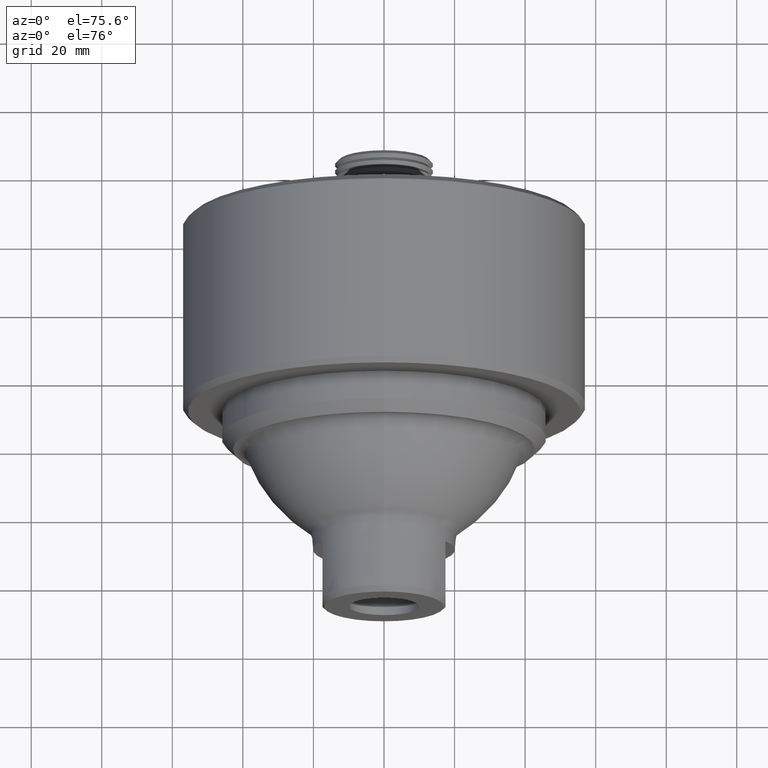
[diagram: clean part render]
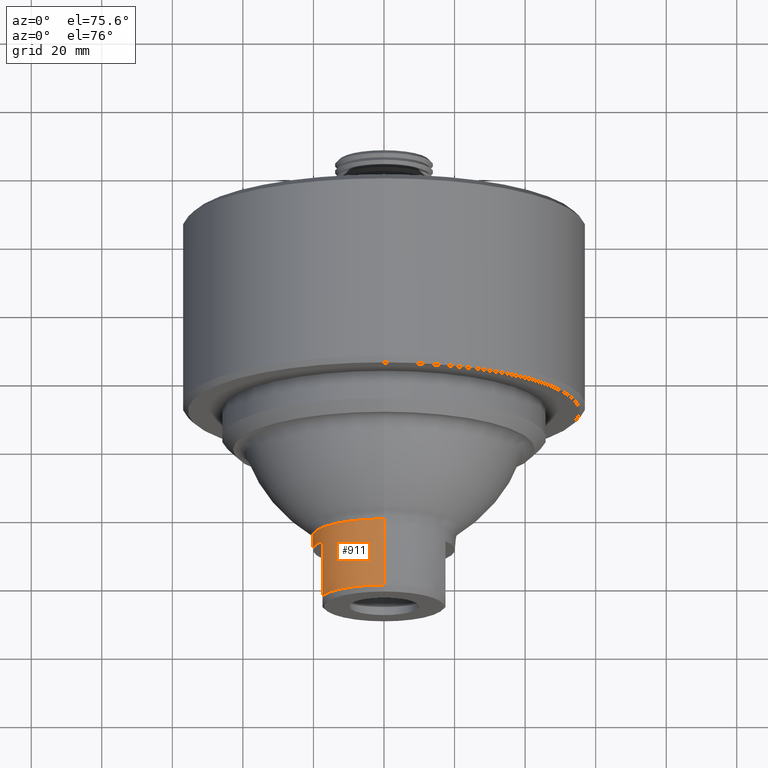
[diagram: same view with one face highlighted and labeled with its STEP entity id]
A machine part, auxiliary view. The second image highlights one B-rep face of the part: STEP entity #911.
In plain terms, the highlighted conical surface has half-angle 5.447 deg.
Its self-contained STEP definition (entity closure, byte-faithful):
#170 = CIRCLE ( 'NONE', #182, 0.7921674418604652800 ) ;
#173 = CIRCLE ( 'NONE', #178, 0.7356951005857581500 ) ;
#177 = CIRCLE ( 'NONE', #180, 0.7356951005857581500 ) ;
#178 = AXIS2_PLACEMENT_3D ( 'NONE', #1679, #1680, #1681 ) ;
#180 = AXIS2_PLACEMENT_3D ( 'NONE', #1692, #1693, #1694 ) ;
#182 = AXIS2_PLACEMENT_3D ( 'NONE', #1701, #1702, #1703 ) ;
#254 = AXIS2_PLACEMENT_3D ( 'NONE', #1848, #1849, #1850 ) ;
#255 = CONICAL_SURFACE ( 'NONE', #254, 0.7356951005857581500, 0.09506145173300949200 ) ;
#442 = EDGE_CURVE ( 'NONE', #2532, #2529, #2752, .T. ) ;
#513 = EDGE_CURVE ( 'NONE', #2531, #2528, #2792, .T. ) ;
#618 = EDGE_CURVE ( 'NONE', #2528, #2529, #2999, .T. ) ;
#686 = VECTOR ( 'NONE', #1000, 39.37007874015748100 ) ;
#787 = VECTOR ( 'NONE', #1183, 39.37007874015748100 ) ;
#866 = EDGE_CURVE ( 'NONE', #2576, #2532, #173, .T. ) ;
#868 = EDGE_CURVE ( 'NONE', #2531, #2577, #177, .T. ) ;
#869 = EDGE_CURVE ( 'NONE', #2577, #2578, #1378, .T. ) ;
#870 = EDGE_CURVE ( 'NONE', #2578, #2579, #170, .T. ) ;
#871 = EDGE_CURVE ( 'NONE', #2579, #2576, #1380, .T. ) ;
#911 = ADVANCED_FACE ( 'NONE', ( #2931 ), #255, .T. ) ;
#999 = CARTESIAN_POINT ( 'NONE',  ( 3.552713678800500900E-015, 0.05972910370429280300, 0.7356951005857581500 ) ) ;
#1000 = DIRECTION ( 'NONE',  ( 0.0000000000000000000, 0.9954850617382041700, 0.09491834309596847200 ) ) ;
#1182 = CARTESIAN_POINT ( 'NONE',  ( 3.642810343808574400E-015, 0.05972910370429280300, -0.7356951005857581500 ) ) ;
#1183 = DIRECTION ( 'NONE',  ( 1.162414450528480600E-017, 0.9954850617382041700, -0.09491834309596847200 ) ) ;
#1378 = B_SPLINE_CURVE_WITH_KNOTS ( 'NONE', 3,
 ( #1695, #1696, #1697, #1698, #1699, #1700 ),
 .UNSPECIFIED., .F., .F.,
 ( 4, 2, 4 ),
 ( 0.06147963865417929700, 0.06903875133002540500, 0.07659786400587149900 ),
 .UNSPECIFIED. ) ;
#1380 = B_SPLINE_CURVE_WITH_KNOTS ( 'NONE', 3,
 ( #1704, #1705, #1706, #1707, #1708, #1709 ),
 .UNSPECIFIED., .F., .F.,
 ( 4, 2, 4 ),
 ( 0.01596719644333322400, 0.02367008420088245100, 0.03137297195843167400 ),
 .UNSPECIFIED. ) ;
#1475 = CARTESIAN_POINT ( 'NONE',  ( 3.552713678800500900E-015, 0.8020314204042533500, 0.0000000000000000000 ) ) ;
#1476 = DIRECTION ( 'NONE',  ( 0.0000000000000000000, 1.000000000000000000, 0.0000000000000000000 ) ) ;
#1477 = DIRECTION ( 'NONE',  ( 0.0000000000000000000, 0.0000000000000000000, 1.000000000000000000 ) ) ;
#1679 = CARTESIAN_POINT ( 'NONE',  ( 3.552713678800500900E-015, 0.05972910370429280300, 0.0000000000000000000 ) ) ;
#1680 = DIRECTION ( 'NONE',  ( 0.0000000000000000000, 1.000000000000000000, 0.0000000000000000000 ) ) ;
#1681 = DIRECTION ( 'NONE',  ( 0.0000000000000000000, 0.0000000000000000000, 1.000000000000000000 ) ) ;
#1692 = CARTESIAN_POINT ( 'NONE',  ( 3.552713678800500900E-015, 0.05972910370429280300, 0.0000000000000000000 ) ) ;
#1693 = DIRECTION ( 'NONE',  ( 0.0000000000000000000, 1.000000000000000000, 0.0000000000000000000 ) ) ;
#1694 = DIRECTION ( 'NONE',  ( 0.0000000000000000000, 0.0000000000000000000, 1.000000000000000000 ) ) ;
#1695 = CARTESIAN_POINT ( 'NONE',  ( -0.6864499999999925700, 0.05972910370429286600, -0.2646387698843348800 ) ) ;
#1696 = CARTESIAN_POINT ( 'NONE',  ( -0.6864499999999927900, 0.1573351616461628200, -0.2905111610609641400 ) ) ;
#1697 = CARTESIAN_POINT ( 'NONE',  ( -0.6864499999999927900, 0.2558064863425552600, -0.3134726585834535200 ) ) ;
#1698 = CARTESIAN_POINT ( 'NONE',  ( -0.6864499999999924600, 0.4535270439805841900, -0.3564613806486505200 ) ) ;
#1699 = CARTESIAN_POINT ( 'NONE',  ( -0.6864499999999925700, 0.5526754392431600900, -0.3763924813928195600 ) ) ;
#1700 = CARTESIAN_POINT ( 'NONE',  ( -0.6864499999999925700, 0.6520000000000000200, -0.3953677445666994300 ) ) ;
#1701 = CARTESIAN_POINT ( 'NONE',  ( 3.552713678800500900E-015, 0.6520000000000000200, 0.0000000000000000000 ) ) ;
#1702 = DIRECTION ( 'NONE',  ( 0.0000000000000000000, 1.000000000000000000, 0.0000000000000000000 ) ) ;
#1703 = DIRECTION ( 'NONE',  ( 0.0000000000000000000, 0.0000000000000000000, 1.000000000000000000 ) ) ;
#1704 = CARTESIAN_POINT ( 'NONE',  ( -0.6864499999999929000, 0.6520000000000000200, 0.3953677445666988800 ) ) ;
#1705 = CARTESIAN_POINT ( 'NONE',  ( -0.6864499999999930100, 0.5526648028807846800, 0.3763904493901227300 ) ) ;
#1706 = CARTESIAN_POINT ( 'NONE',  ( -0.6864499999999930100, 0.4535402785546304200, 0.3564632163868123300 ) ) ;
#1707 = CARTESIAN_POINT ( 'NONE',  ( -0.6864499999999930100, 0.2559782258720476600, 0.3135110392378368500 ) ) ;
#1708 = CARTESIAN_POINT ( 'NONE',  ( -0.6864499999999930100, 0.1575240353912205100, 0.2905612257343884200 ) ) ;
#1709 = CARTESIAN_POINT ( 'NONE',  ( -0.6864499999999929000, 0.05972910370429005500, 0.2646387698843408200 ) ) ;
#1848 = CARTESIAN_POINT ( 'NONE',  ( 3.552713678800500900E-015, 0.05972910370429280300, 0.0000000000000000000 ) ) ;
#1849 = DIRECTION ( 'NONE',  ( 0.0000000000000000000, 1.000000000000000000, 0.0000000000000000000 ) ) ;
#1850 = DIRECTION ( 'NONE',  ( 0.0000000000000000000, 0.0000000000000000000, 1.000000000000000000 ) ) ;
#2124 = CARTESIAN_POINT ( 'NONE',  ( 3.651478107622992800E-015, 0.8020314204042533500, -0.8064727633408708100 ) ) ;
#2125 = CARTESIAN_POINT ( 'NONE',  ( 3.552713678800500900E-015, 0.8020314204042533500, 0.8064727633408708100 ) ) ;
#2127 = CARTESIAN_POINT ( 'NONE',  ( 3.642810343808575200E-015, 0.05972910370429280300, -0.7356951005857581500 ) ) ;
#2128 = CARTESIAN_POINT ( 'NONE',  ( 3.552713678800500900E-015, 0.05972910370429280300, 0.7356951005857581500 ) ) ;
#2172 = CARTESIAN_POINT ( 'NONE',  ( -0.6864499999999929000, 0.05972910370429005500, 0.2646387698843408200 ) ) ;
#2173 = CARTESIAN_POINT ( 'NONE',  ( -0.6864499999999925700, 0.05972910370429286600, -0.2646387698843348800 ) ) ;
#2174 = CARTESIAN_POINT ( 'NONE',  ( -0.6864499999999925700, 0.6520000000000000200, -0.3953677445666994300 ) ) ;
#2175 = CARTESIAN_POINT ( 'NONE',  ( -0.6864499999999929000, 0.6520000000000000200, 0.3953677445666988800 ) ) ;
#2281 = ORIENTED_EDGE ( 'NONE', *, *, #513, .F. ) ;
#2282 = ORIENTED_EDGE ( 'NONE', *, *, #868, .T. ) ;
#2283 = ORIENTED_EDGE ( 'NONE', *, *, #869, .T. ) ;
#2284 = ORIENTED_EDGE ( 'NONE', *, *, #871, .T. ) ;
#2285 = ORIENTED_EDGE ( 'NONE', *, *, #870, .T. ) ;
#2286 = ORIENTED_EDGE ( 'NONE', *, *, #866, .T. ) ;
#2287 = ORIENTED_EDGE ( 'NONE', *, *, #618, .F. ) ;
#2288 = ORIENTED_EDGE ( 'NONE', *, *, #442, .T. ) ;
#2440 = EDGE_LOOP ( 'NONE', ( #2281, #2282, #2283, #2285, #2284, #2286, #2288, #2287 ) ) ;
#2528 = VERTEX_POINT ( 'NONE', #2124 ) ;
#2529 = VERTEX_POINT ( 'NONE', #2125 ) ;
#2531 = VERTEX_POINT ( 'NONE', #2127 ) ;
#2532 = VERTEX_POINT ( 'NONE', #2128 ) ;
#2576 = VERTEX_POINT ( 'NONE', #2172 ) ;
#2577 = VERTEX_POINT ( 'NONE', #2173 ) ;
#2578 = VERTEX_POINT ( 'NONE', #2174 ) ;
#2579 = VERTEX_POINT ( 'NONE', #2175 ) ;
#2752 = LINE ( 'NONE', #999, #686 ) ;
#2792 = LINE ( 'NONE', #1182, #787 ) ;
#2931 = FACE_OUTER_BOUND ( 'NONE', #2440, .T. ) ;
#2995 = AXIS2_PLACEMENT_3D ( 'NONE', #1475, #1476, #1477 ) ;
#2999 = CIRCLE ( 'NONE', #2995, 0.8064727633408708100 ) ;